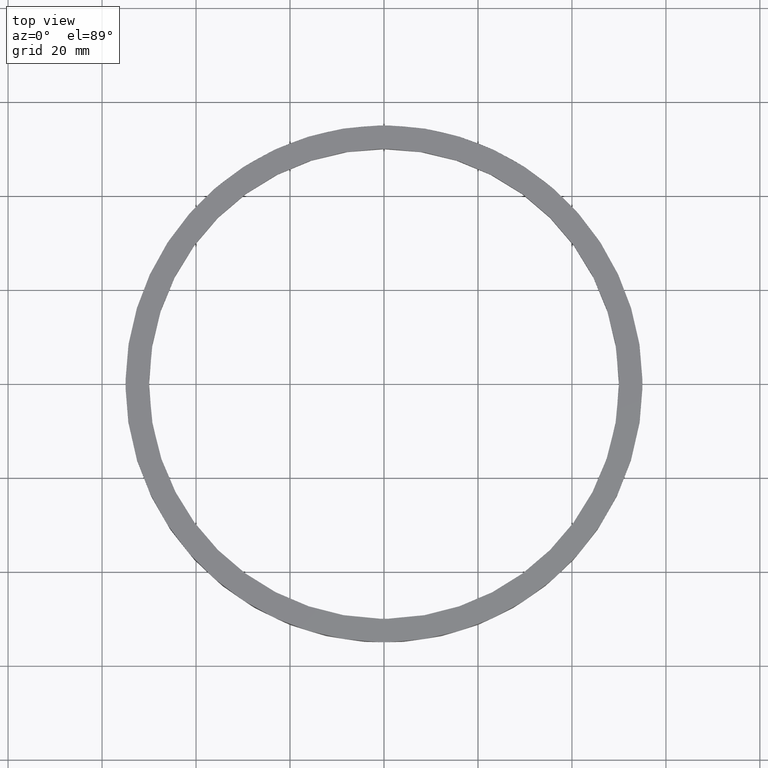
[diagram: clean part render]
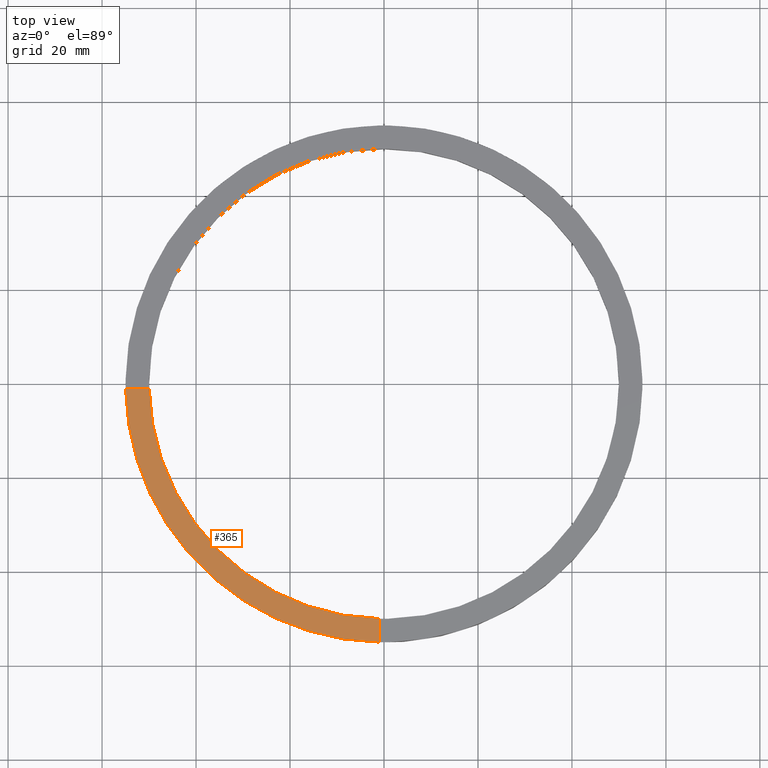
[diagram: same view with one face highlighted and labeled with its STEP entity id]
A machine part, top view. The second image highlights one B-rep face of the part: STEP entity #365.
In plain terms, the highlighted planar face has unit normal (0, 0, 1).
Its self-contained STEP definition (entity closure, byte-faithful):
#21 = PLANE ( 'NONE',  #125 ) ;
#59 = CARTESIAN_POINT ( 'NONE',  ( -1.000000000000155431, -54.99090833947007440, 5.500000000000000000 ) ) ;
#78 = DIRECTION ( 'NONE',  ( 0.000000000000000000, 0.000000000000000000, 1.000000000000000000 ) ) ;
#86 = DIRECTION ( 'NONE',  ( 1.000000000000000000, 0.000000000000000000, -0.000000000000000000 ) ) ;
#124 = CARTESIAN_POINT ( 'NONE',  ( 0.000000000000000000, 0.000000000000000000, 5.500000000000000000 ) ) ;
#125 = AXIS2_PLACEMENT_3D ( 'NONE', #522, #78, #86 ) ;
#129 = CARTESIAN_POINT ( 'NONE',  ( -1.000000000000156763, -45.00000000000017764, 5.500000000000000000 ) ) ;
#131 = CARTESIAN_POINT ( 'NONE',  ( 0.000000000000000000, 0.000000000000000000, 5.500000000000000000 ) ) ;
#163 = ORIENTED_EDGE ( 'NONE', *, *, #328, .T. ) ;
#175 = VERTEX_POINT ( 'NONE', #265 ) ;
#188 = ORIENTED_EDGE ( 'NONE', *, *, #582, .F. ) ;
#190 = EDGE_CURVE ( 'NONE', #477, #458, #440, .T. ) ;
#235 = LINE ( 'NONE', #692, #772 ) ;
#248 = CARTESIAN_POINT ( 'NONE',  ( -1.000000000000156097, -49.98999899979995121, 5.500000000000000000 ) ) ;
#249 = CIRCLE ( 'NONE', #619, 50.00000000000000000 ) ;
#265 = CARTESIAN_POINT ( 'NONE',  ( -54.99090833947007440, -1.000000000000032863, 5.500000000000000000 ) ) ;
#328 = EDGE_CURVE ( 'NONE', #175, #458, #774, .T. ) ;
#349 = CARTESIAN_POINT ( 'NONE',  ( -49.98999899979995121, -1.000000000000031974, 5.500000000000000000 ) ) ;
#365 = ADVANCED_FACE ( 'NONE', ( #494 ), #21, .T. ) ;
#402 = EDGE_CURVE ( 'NONE', #632, #477, #249, .T. ) ;
#427 = DIRECTION ( 'NONE',  ( 1.301042606982605074E-16, -1.000000000000000000, 0.000000000000000000 ) ) ;
#431 = DIRECTION ( 'NONE',  ( 0.000000000000000000, 0.000000000000000000, 1.000000000000000000 ) ) ;
#440 = LINE ( 'NONE', #129, #450 ) ;
#450 = VECTOR ( 'NONE', #427, 1000.000000000000000 ) ;
#458 = VERTEX_POINT ( 'NONE', #59 ) ;
#477 = VERTEX_POINT ( 'NONE', #248 ) ;
#494 = FACE_OUTER_BOUND ( 'NONE', #668, .T. ) ;
#522 = CARTESIAN_POINT ( 'NONE',  ( 0.000000000000000000, 0.000000000000000000, 5.500000000000000000 ) ) ;
#536 = DIRECTION ( 'NONE',  ( 1.000000000000000000, 1.951563910473907735E-16, -0.000000000000000000 ) ) ;
#567 = AXIS2_PLACEMENT_3D ( 'NONE', #124, #431, #755 ) ;
#582 = EDGE_CURVE ( 'NONE', #175, #632, #235, .T. ) ;
#619 = AXIS2_PLACEMENT_3D ( 'NONE', #131, #674, #761 ) ;
#632 = VERTEX_POINT ( 'NONE', #349 ) ;
#668 = EDGE_LOOP ( 'NONE', ( #702, #738, #188, #163 ) ) ;
#674 = DIRECTION ( 'NONE',  ( 0.000000000000000000, 0.000000000000000000, 1.000000000000000000 ) ) ;
#692 = CARTESIAN_POINT ( 'NONE',  ( -45.00000000000018474, -1.000000000000031086, 5.500000000000000000 ) ) ;
#702 = ORIENTED_EDGE ( 'NONE', *, *, #190, .F. ) ;
#738 = ORIENTED_EDGE ( 'NONE', *, *, #402, .F. ) ;
#755 = DIRECTION ( 'NONE',  ( 1.000000000000000000, 0.000000000000000000, 0.000000000000000000 ) ) ;
#761 = DIRECTION ( 'NONE',  ( 1.000000000000000000, 0.000000000000000000, 0.000000000000000000 ) ) ;
#772 = VECTOR ( 'NONE', #536, 1000.000000000000000 ) ;
#774 = CIRCLE ( 'NONE', #567, 55.00000000000000000 ) ;